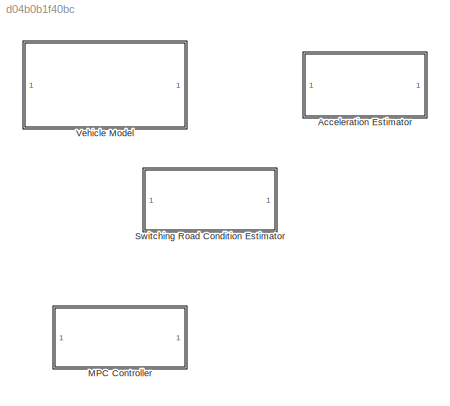
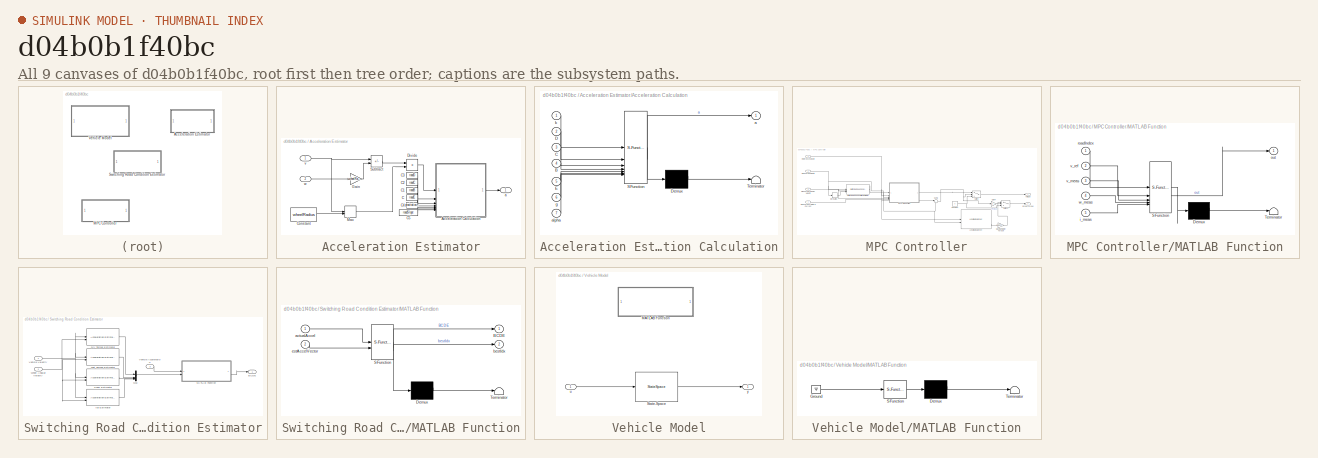
[diagram: thumbnail index - all 9 canvases of the model, root first then tree order]
MODEL slx_d04b0b1f40bc
KIND library
CONFIG AbsTol = auto
CONFIG EnableMultiTasking = off
CONFIG FixedStep = auto
CONFIG MaxStep = auto
CONFIG MinStep = auto
CONFIG RelTol = 1e-3
CONFIG SampleTimeConstraint = Unconstrained
CONFIG SolverName = VariableStepAuto
CONFIG StartTime = 0.0
CONFIG StopTime = 10.0
BLOCK [SubSystem] Acceleration Estimator
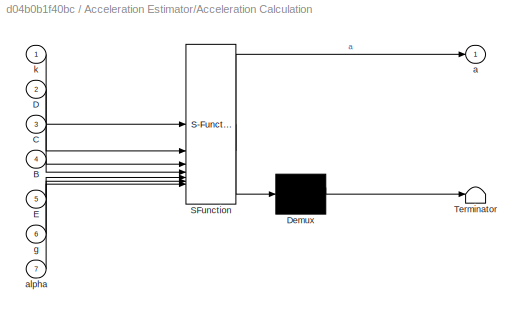
BLOCK [SubSystem] Acceleration Estimator/Acceleration Calculation
  ErrorFcn = Stateflow.Translate.translate
  PermitHierarchicalResolution = ExplicitOnly
  SFBlockType = MATLAB Function
  TreatAsAtomicUnit = on
BLOCK [Demux] Acceleration Estimator/Acceleration Calculation/ Demux 
  Outputs = 1
BLOCK [S-Function] Acceleration Estimator/Acceleration Calculation/ SFunction 
  EnableBusSupport = off
  FunctionName = sf_sfun
  PortCounts = [7 2]
  SFcnIsStateOwnerBlock = off
  SFunctionDeploymentMode = off
  Tag = Stateflow S-Function 1
BLOCK [Terminator] Acceleration Estimator/Acceleration Calculation/ Terminator 
BLOCK [Inport] Acceleration Estimator/Acceleration Calculation/B
  Port = 4
BLOCK [Inport] Acceleration Estimator/Acceleration Calculation/C
  Port = 3
BLOCK [Inport] Acceleration Estimator/Acceleration Calculation/D
  Port = 2
BLOCK [Inport] Acceleration Estimator/Acceleration Calculation/E
  Port = 5
BLOCK [Outport] Acceleration Estimator/Acceleration Calculation/a
BLOCK [Inport] Acceleration Estimator/Acceleration Calculation/alpha
  Port = 7
BLOCK [Inport] Acceleration Estimator/Acceleration Calculation/g
  Port = 6
BLOCK [Inport] Acceleration Estimator/Acceleration Calculation/k
BLOCK [Constant] Acceleration Estimator/C
  Value = roadE
BLOCK [Constant] Acceleration Estimator/C1
  Value = roadB
BLOCK [Constant] Acceleration Estimator/C2
  Value = roadC
BLOCK [Constant] Acceleration Estimator/C3
  Value = roadD
BLOCK [Constant] Acceleration Estimator/C4
  Value = gravitationalAcceleration
BLOCK [Constant] Acceleration Estimator/C5
  Value = roadSlope
BLOCK [Constant] Acceleration Estimator/Constant
  Value = wheelRadius
BLOCK [Product] Acceleration Estimator/Divide
  Inputs = */
BLOCK [Gain] Acceleration Estimator/Gain
  Gain = wheelRadius
BLOCK [MinMax] Acceleration Estimator/Max
  Function = max
  Inputs = 2
BLOCK [Sum] Acceleration Estimator/Subtract
  IconShape = rectangular
  Inputs = -+
BLOCK [Outport] Acceleration Estimator/a
BLOCK [Inport] Acceleration Estimator/v
BLOCK [Inport] Acceleration Estimator/w
  Port = 2
BLOCK [SubSystem] MPC Controller
BLOCK [Outport] MPC Controller/Break Torque
  Port = 2
BLOCK [Constant] MPC Controller/Constant
  Value = 0
BLOCK [Derivative] MPC Controller/Derivative
BLOCK [Gain] MPC Controller/Gain4
  Gain = -1
BLOCK [Reference] MPC Controller/Longitudinal Driver  REF=autolibshared/Longitudinal Driver
  LibrarySourceBlock = vehdynlibdriver/Longitudinal Driver
  SourceBlock = autolibshared/Longitudinal Driver
  SourceType = Longitudinal Driver
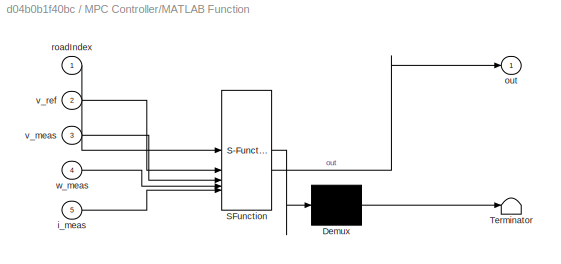
BLOCK [SubSystem] MPC Controller/MATLAB Function
  ErrorFcn = Stateflow.Translate.translate
  PermitHierarchicalResolution = ExplicitOnly
  SFBlockType = MATLAB Function
  SystemSampleTime = Ts
  TreatAsAtomicUnit = on
BLOCK [Demux] MPC Controller/MATLAB Function/ Demux 
  Outputs = 1
BLOCK [S-Function] MPC Controller/MATLAB Function/ SFunction 
  EnableBusSupport = off
  FunctionName = sf_sfun
  Parameters = angular_velocity_penalty,current_penalty,prediction_horizon,stateSpace,velocity_penalty,voltage_penalty
  PortCounts = [5 2]
  SFcnIsStateOwnerBlock = off
  SFunctionDeploymentMode = off
  Tag = Stateflow S-Function 4
BLOCK [Terminator] MPC Controller/MATLAB Function/ Terminator 
BLOCK [Inport] MPC Controller/MATLAB Function/i_meas
  Port = 5
BLOCK [Outport] MPC Controller/MATLAB Function/out
BLOCK [Inport] MPC Controller/MATLAB Function/roadIndex
BLOCK [Inport] MPC Controller/MATLAB Function/v_meas
  Port = 3
BLOCK [Inport] MPC Controller/MATLAB Function/v_ref
  Port = 2
BLOCK [Inport] MPC Controller/MATLAB Function/w_meas
  Port = 4
BLOCK [Gain] MPC Controller/Maximum Motor Torque
  Gain = MotorTorqueMax
BLOCK [Inport] MPC Controller/Measured Angular Velocity
  Port = 3
BLOCK [Inport] MPC Controller/Measured Armature Current
  Port = 4
BLOCK [Inport] MPC Controller/Measured Velocity
  Port = 2
BLOCK [Inport] MPC Controller/Reference Velocity
BLOCK [Sum] MPC Controller/Sum2
  Inputs = |+-
BLOCK [Switch] MPC Controller/Switch
  Criteria = u2 > Threshold
  InputSameDT = off
  SaturateOnIntegerOverflow = off
BLOCK [Switch] MPC Controller/Switch1
  Criteria = u2 > Threshold
  InputSameDT = off
  SaturateOnIntegerOverflow = off
BLOCK [Reference] MPC Controller/Switching Road Condition Estimator  REF=$bdroot/Switching Road Condition Estimator
  SourceBlock = $bdroot/Switching Road Condition Estimator
BLOCK [Outport] MPC Controller/Votlage
BLOCK [SubSystem] Switching Road Condition Estimator
BLOCK [Outport] Switching Road Condition Estimator/BCDE
BLOCK [Reference] Switching Road Condition Estimator/Dry Tarmac Estimator  REF=$bdroot/Acceleration Estimator
  SourceBlock = $bdroot/Acceleration Estimator
BLOCK [Reference] Switching Road Condition Estimator/Ice Estimator  REF=$bdroot/Acceleration Estimator
  SourceBlock = $bdroot/Acceleration Estimator
BLOCK [SubSystem] Switching Road Condition Estimator/MATLAB Function
  ErrorFcn = Stateflow.Translate.translate
  PermitHierarchicalResolution = ExplicitOnly
  SFBlockType = MATLAB Function
  TreatAsAtomicUnit = on
BLOCK [Demux] Switching Road Condition Estimator/MATLAB Function/ Demux 
  Outputs = 1
BLOCK [S-Function] Switching Road Condition Estimator/MATLAB Function/ SFunction 
  EnableBusSupport = off
  FunctionName = sf_sfun
  PortCounts = [2 3]
  SFcnIsStateOwnerBlock = off
  SFunctionDeploymentMode = off
  Tag = Stateflow S-Function 3
BLOCK [Terminator] Switching Road Condition Estimator/MATLAB Function/ Terminator 
BLOCK [Outport] Switching Road Condition Estimator/MATLAB Function/BCDE
BLOCK [Inport] Switching Road Condition Estimator/MATLAB Function/actualAccel
BLOCK [Outport] Switching Road Condition Estimator/MATLAB Function/bestIdx
  Port = 2
BLOCK [Inport] Switching Road Condition Estimator/MATLAB Function/estAccelVector
  Port = 2
BLOCK [Mux] Switching Road Condition Estimator/Mux
  DisplayOption = bar
BLOCK [Reference] Switching Road Condition Estimator/Snow Estimator  REF=$bdroot/Acceleration Estimator
  SourceBlock = $bdroot/Acceleration Estimator
BLOCK [Inport] Switching Road Condition Estimator/Vehicle Acceleration
  Port = 3
BLOCK [Inport] Switching Road Condition Estimator/Vehicle Velocity
BLOCK [Reference] Switching Road Condition Estimator/Wet Tarmac Estimator  REF=$bdroot/Acceleration Estimator
  SourceBlock = $bdroot/Acceleration Estimator
BLOCK [Inport] Switching Road Condition Estimator/Wheel Angular Velocity
  Port = 2
BLOCK [SubSystem] Vehicle Model
BLOCK [SubSystem] Vehicle Model/MATLAB Function
  Commented = on
  ErrorFcn = Stateflow.Translate.translate
  PermitHierarchicalResolution = ExplicitOnly
  SFBlockType = MATLAB Function
  TreatAsAtomicUnit = on
BLOCK [Demux] Vehicle Model/MATLAB Function/ Demux 
  Outputs = 1
BLOCK [Ground] Vehicle Model/MATLAB Function/ Ground 
BLOCK [S-Function] Vehicle Model/MATLAB Function/ SFunction 
  EnableBusSupport = off
  FunctionName = sf_sfun
  Parameters = A,B,C,D
  PortCounts = [1 1]
  SFcnIsStateOwnerBlock = off
  SFunctionDeploymentMode = off
  Tag = Stateflow S-Function 2
BLOCK [Terminator] Vehicle Model/MATLAB Function/ Terminator 
BLOCK [StateSpace] Vehicle Model/State-Space
  A = A_matrix
  B = B_matrix
  C = C_matrix
  D = D_matrix
  InitialCondition = 0
BLOCK [Inport] Vehicle Model/u
BLOCK [Outport] Vehicle Model/y
LINE Acceleration Estimator/Acceleration Calculation:1 -> Acceleration Estimator/a:1
LINE Acceleration Estimator/C1:1 -> Acceleration Estimator/Acceleration Calculation:4
LINE Acceleration Estimator/C2:1 -> Acceleration Estimator/Acceleration Calculation:3
LINE Acceleration Estimator/C3:1 -> Acceleration Estimator/Acceleration Calculation:2
LINE Acceleration Estimator/C4:1 -> Acceleration Estimator/Acceleration Calculation:6
LINE Acceleration Estimator/C5:1 -> Acceleration Estimator/Acceleration Calculation:7
LINE Acceleration Estimator/C:1 -> Acceleration Estimator/Acceleration Calculation:5
LINE Acceleration Estimator/Constant:1 -> Acceleration Estimator/Max:2
LINE Acceleration Estimator/Divide:1 -> Acceleration Estimator/Acceleration Calculation:1
LINE Acceleration Estimator/Gain:1 -> Acceleration Estimator/Subtract:2
LINE Acceleration Estimator/Max:1 -> Acceleration Estimator/Divide:2
LINE Acceleration Estimator/Subtract:1 -> Acceleration Estimator/Divide:1
NET Acceleration Estimator/v:1 -> Acceleration Estimator/Max:1, Acceleration Estimator/Subtract:1
LINE Acceleration Estimator/w:1 -> Acceleration Estimator/Gain:1
NET MPC Controller/Constant:1 -> MPC Controller/Switch1:3, MPC Controller/Switch:3
LINE MPC Controller/Derivative:1 -> MPC Controller/Switching Road Condition Estimator:3
LINE MPC Controller/Gain4:1 -> MPC Controller/Switch1:2
LINE MPC Controller/Longitudinal Driver:3 -> MPC Controller/Maximum Motor Torque:1
LINE MPC Controller/MATLAB Function:1 -> MPC Controller/Switch:1
LINE MPC Controller/Maximum Motor Torque:1 -> MPC Controller/Switch1:1
NET MPC Controller/Measured Angular Velocity:1 -> MPC Controller/MATLAB Function:4, MPC Controller/Switching Road Condition Estimator:2
LINE MPC Controller/Measured Armature Current:1 -> MPC Controller/MATLAB Function:5
NET MPC Controller/Measured Velocity:1 -> MPC Controller/Derivative:1, MPC Controller/Longitudinal Driver:2, MPC Controller/MATLAB Function:3, MPC Controller/Sum2:2, MPC Controller/Switching Road Condition Estimator:1
NET MPC Controller/Reference Velocity:1 -> MPC Controller/Longitudinal Driver:1, MPC Controller/MATLAB Function:2, MPC Controller/Sum2:1
NET MPC Controller/Sum2:1 -> MPC Controller/Gain4:1, MPC Controller/Switch:2
LINE MPC Controller/Switch1:1 -> MPC Controller/Break Torque:1
LINE MPC Controller/Switch:1 -> MPC Controller/Votlage:1
LINE MPC Controller/Switching Road Condition Estimator:1 -> MPC Controller/MATLAB Function:1
LINE Switching Road Condition Estimator/Dry Tarmac Estimator:1 -> Switching Road Condition Estimator/Mux:1
LINE Switching Road Condition Estimator/Ice Estimator:1 -> Switching Road Condition Estimator/Mux:4
LINE Switching Road Condition Estimator/MATLAB Function:2 -> Switching Road Condition Estimator/BCDE:1
LINE Switching Road Condition Estimator/Mux:1 -> Switching Road Condition Estimator/MATLAB Function:2
LINE Switching Road Condition Estimator/Snow Estimator:1 -> Switching Road Condition Estimator/Mux:3
LINE Switching Road Condition Estimator/Vehicle Acceleration:1 -> Switching Road Condition Estimator/MATLAB Function:1
NET Switching Road Condition Estimator/Vehicle Velocity:1 -> Switching Road Condition Estimator/Dry Tarmac Estimator:1, Switching Road Condition Estimator/Ice Estimator:1, Switching Road Condition Estimator/Snow Estimator:1, Switching Road Condition Estimator/Wet Tarmac Estimator:1
LINE Switching Road Condition Estimator/Wet Tarmac Estimator:1 -> Switching Road Condition Estimator/Mux:2
NET Switching Road Condition Estimator/Wheel Angular Velocity:1 -> Switching Road Condition Estimator/Dry Tarmac Estimator:2, Switching Road Condition Estimator/Ice Estimator:2, Switching Road Condition Estimator/Snow Estimator:2, Switching Road Condition Estimator/Wet Tarmac Estimator:2
note: NET lines group one-source signal fan-out (src -> all destinations, sorted); 1:1 wires keep LINE
CHART Acceleration Estimator/Acceleration Calculation states=1 transitions=1
  STATE_LABEL 'eML_blk_kernel()'
  STATE_LABEL 'SCRIPT:\nfunction a = PacejkaFormula(k, D, C, B, E, g, alpha)\n    \n    % Compute acceleration\n    num_wheels = 2;\n    ux = D * sin(C * atan(B * k - E * (B * k - atan(B * k))));\n    a = num_wheels * 1 * cos(alpha) * ux;'
CHART Vehicle Model/MATLAB Function states=1 transitions=1
  STATE_LABEL 'eML_blk_kernel()'
  STATE_LABEL "SCRIPT:\nfunction GenerateStateSpaceMatrices(B, C, D, A)\n%#codegen\n\n% Get parameters from the block mask\nroadCondition        = get_param(gcb, 'RoadCondition'); % e.g. 'Dry Tarmac'\nvehicleMass          = str2double(get_param(gcb, 'vehicleMass'));         \nwheelInertia         = str2double(get_param(gcb, 'wheelInertia'));        \nwheelRadius          = str2double(get_param(gcb, 'wheelRadius'));     ...<+1640ch>"
CHART Switching Road Condition Estimator/MATLAB Function states=1 transitions=1
  STATE_LABEL 'eML_blk_kernel()'
  STATE_LABEL 'SCRIPT:\nfunction [BCDE, bestIdx] = fcn(actualAccel, estAccelVector)\n% Inputs:\n%   actualAccel     - scalar (latest measured acceleration)\n%   estAccelVector  - 4×1 vector (latest estimated acceleration for each road condition)\n% Outputs:\n%   BCDE            - 1×4 vector: [B C D E] for best-fit road\n%   bestIdx         - integer: index of best-fit road condition\n\n    % --- Parameters ---\n    window...<+985ch>'
CHART MPC Controller/MATLAB Function states=1 transitions=1
  STATE_LABEL 'eML_blk_kernel()'
  STATE_LABEL 'SCRIPT:\nfunction out = lmpc_step(roadIndex, v_ref, v_meas, w_meas, i_meas, ...\n    stateSpace, velocity_penalty, angular_velocity_penalty, current_penalty, voltage_penalty, prediction_horizon)\n% LMPC_STEP  One-step linear MPC with condensed QP formulation.\n% Inputs:\n%   roadIndex : integer in {1=dry, 2=wet, 3=snow, 4=ice}\n%   v_ref     : current reference velocity [m/s] (assumed constant over hori...<+3608ch>'
CHART  states=0 transitions=0
CHART  states=0 transitions=0
CHART  states=0 transitions=0
CHART  states=0 transitions=0
